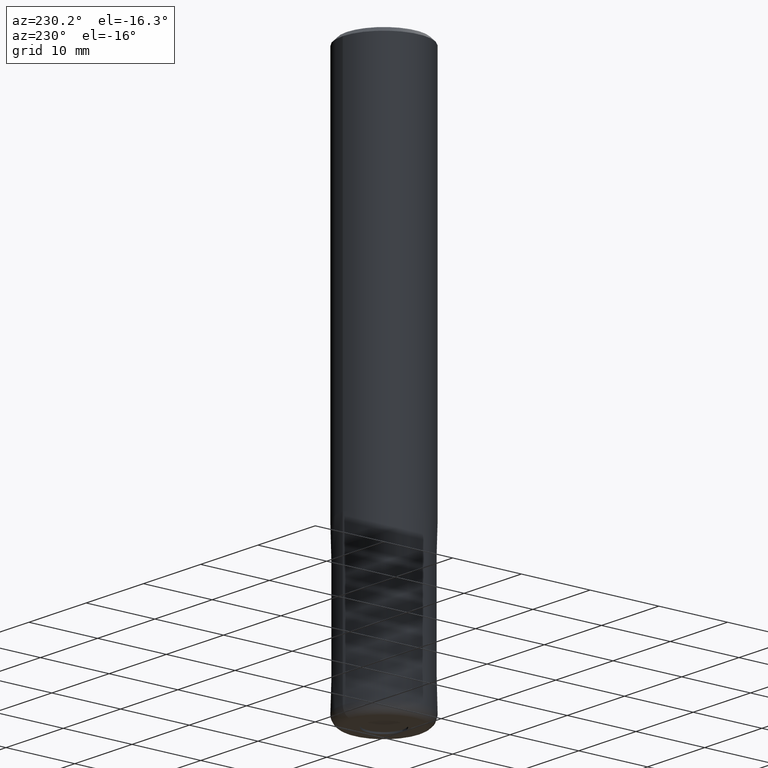
[diagram: clean part render]
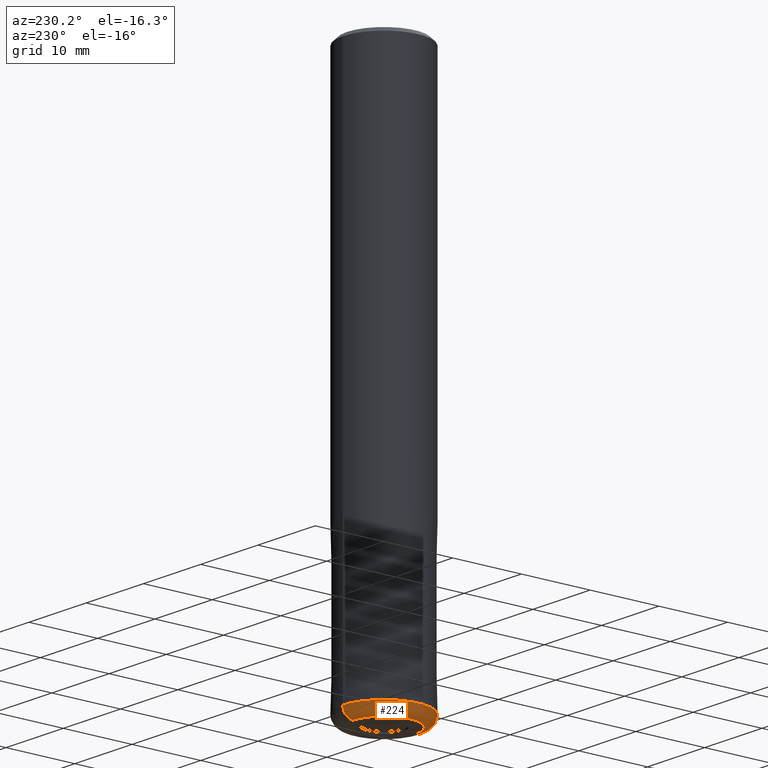
[diagram: same view with one face highlighted and labeled with its STEP entity id]
A machine part, auxiliary view. The second image highlights one B-rep face of the part: STEP entity #224.
In plain terms, the highlighted toroidal blend (fillet) surface has major radius 4.5 mm and minor (blend) radius 1.5 mm.
Its self-contained STEP definition (entity closure, byte-faithful):
#148=EDGE_CURVE('',#186,#170,#312,.T.);
#156=EDGE_CURVE('',#170,#172,#320,.T.);
#170=VERTEX_POINT('',#336);
#172=VERTEX_POINT('',#338);
#178=EDGE_CURVE('',#172,#188,#345,.T.);
#186=VERTEX_POINT('',#354);
#188=VERTEX_POINT('',#356);
#224=ADVANCED_FACE('',(#400),#401,.T.);
#230=EDGE_CURVE('',#186,#188,#408,.T.);
#312=CIRCLE('',#499,1.5);
#320=CIRCLE('',#512,4.5);
#336=CARTESIAN_POINT('',(5.5107285922007E-016,-4.5,-80.0));
#338=CARTESIAN_POINT('',(0.0,4.5,-80.0));
#345=CIRCLE('',#546,1.5);
#354=CARTESIAN_POINT('',(7.34763812293426E-016,-6.0,-78.5));
#356=CARTESIAN_POINT('',(0.0,6.0,-78.5));
#400=FACE_OUTER_BOUND('',#608,.T.);
#401=TOROIDAL_SURFACE('',#609,4.5,1.5);
#408=CIRCLE('',#618,6.0);
#499=AXIS2_PLACEMENT_3D('',#697,#698,#699);
#512=AXIS2_PLACEMENT_3D('',#707,#708,#709);
#546=AXIS2_PLACEMENT_3D('',#738,#739,#740);
#608=EDGE_LOOP('',(#809,#810,#811,#812));
#609=AXIS2_PLACEMENT_3D('',#813,#814,#815);
#618=AXIS2_PLACEMENT_3D('',#827,#828,#829);
#697=CARTESIAN_POINT('',(5.5107285922007E-016,-4.5,-78.5));
#698=DIRECTION('',(1.0,1.22460635382238E-016,0.0));
#699=DIRECTION('',(1.22460635382238E-016,-1.0,-0.0));
#707=CARTESIAN_POINT('',(0.0,0.0,-80.0));
#708=DIRECTION('',(0.0,0.0,-1.0));
#709=DIRECTION('',(0.0,1.0,0.0));
#738=CARTESIAN_POINT('',(-5.5107285922007E-016,4.5,-78.5));
#739=DIRECTION('',(1.0,1.22460635382238E-016,0.0));
#740=DIRECTION('',(-1.22460635382238E-016,1.0,0.0));
#809=ORIENTED_EDGE('',*,*,#148,.F.);
#810=ORIENTED_EDGE('',*,*,#230,.T.);
#811=ORIENTED_EDGE('',*,*,#178,.F.);
#812=ORIENTED_EDGE('',*,*,#156,.F.);
#813=CARTESIAN_POINT('',(0.0,0.0,-78.5));
#814=DIRECTION('',(0.0,0.0,-1.0));
#815=DIRECTION('',(0.0,-1.0,0.0));
#827=CARTESIAN_POINT('',(0.0,0.0,-78.5));
#828=DIRECTION('',(0.0,0.0,-1.0));
#829=DIRECTION('',(0.0,1.0,0.0));